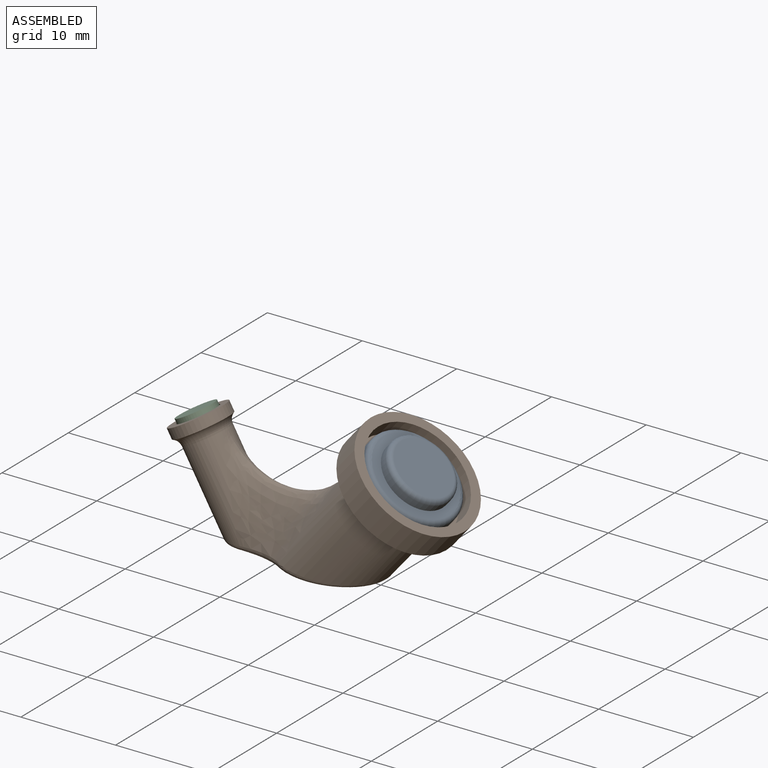
[diagram: assembled view]
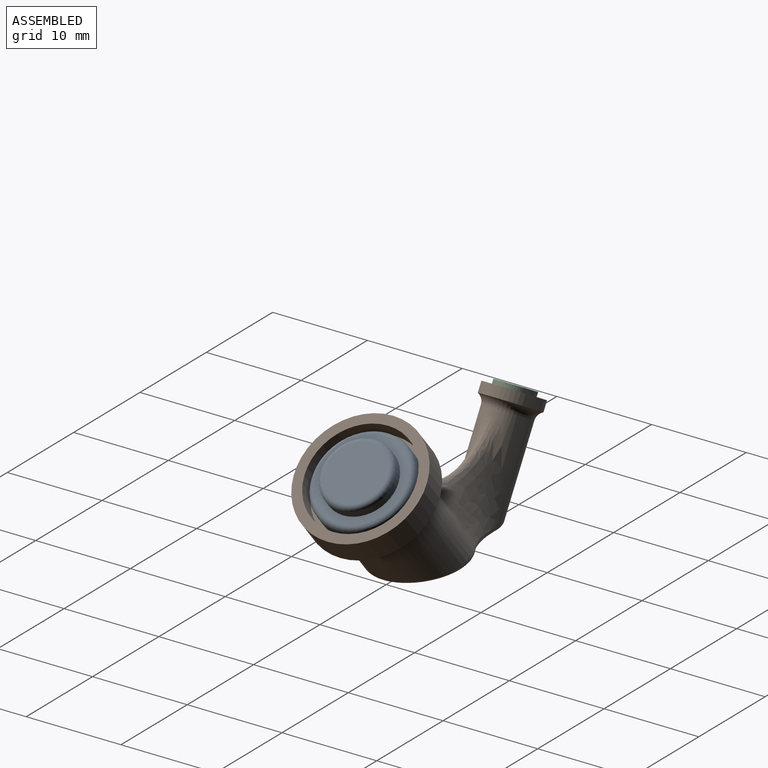
[diagram: assembled view, second angle]
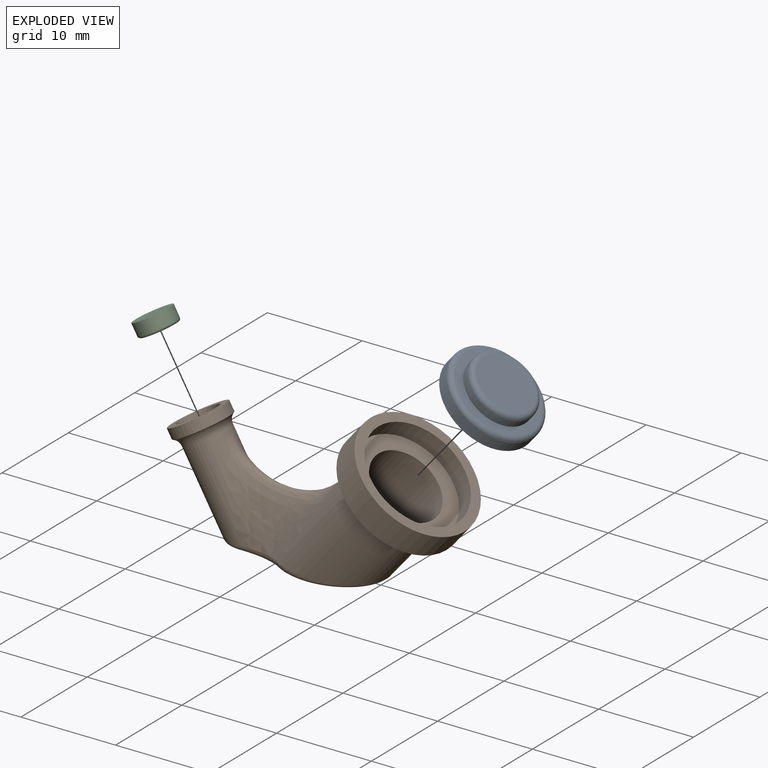
[diagram: exploded view]
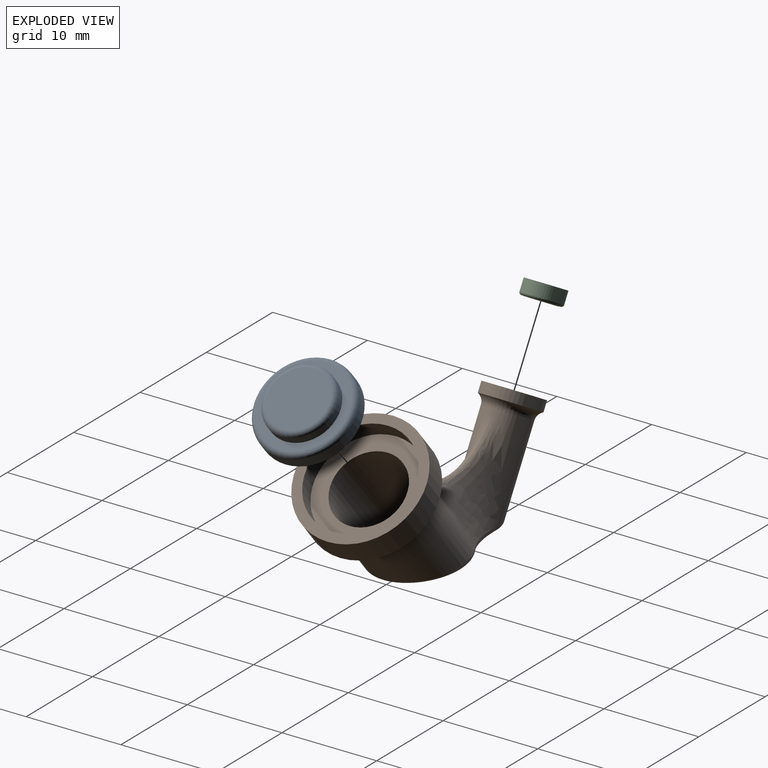
[diagram: exploded view, second angle]
ASSEMBLY  parts=3 mates=2
PART A: 7 faces, bbox 10.8x10.8x3 mm
  f0: cylinder r=4.99mm len=9.98mm, axis (0,0,-1), area 37.4mm2, adj f2,f6
  f1: plane 8.97x8.97mm, normal (0,0,1), area 22.6mm2, adj f3,f6
  f2: plane 9.98x9.98mm, normal (0,0,-1), area 78.3mm2, adj f0
  f3: cylinder r=3.59mm len=7.19mm, axis (0,0,-1), area 17.5mm2, adj f1,f5
  f4: plane 6.17x6.17mm, normal (0,0,1), area 29.9mm2, adj f5
  f5: torus R=3.09mm, axis (0,0,1), area 17.1mm2, adj f3,f4
  f6: torus R=4.48mm, axis (0,0,1), area 24.1mm2, adj f0,f1
PART B: 27 faces, bbox 31.2x13.8x20.4 mm
  f0: plane 3.91x3.38mm, normal (-0.5,0,0.87), area 4mm2, adj f5,f16
  f1: plane 8.28x7.87mm, normal (0,0,-1), area 6.9mm2, adj f8,f13,f14,f15
  f2: bspline ~12.44x9.42mm, area 54mm2, adj f3,f6,f10,f11
  f3: bspline ~12.44x9.42mm, area 54.2mm2, adj f2,f4,f6,f10
  f4: bspline ~7.16x7.07mm, area 11mm2, adj f3,f6,f10,f14
  f5: cylinder r=1.6mm len=12.06mm, axis (-0.5,0,0.87), area 112.1mm2, adj f0,f7
  f6: cylinder r=2.41mm len=10.74mm, axis (-0.5,0,0.87), area 98.7mm2, adj f2,f3,f4,f11,f12,f26
  f7: plane 7.69x6.29mm, normal (0,0,-1), area 12.1mm2, adj f5,f8,f12,f13,f14
  f8: cylinder r=3.75mm len=16.77mm, axis (0.64,0,0.77), area 293.2mm2, adj f1,f7,f9,f13,f14
  f9: plane 10.84x8.31mm, normal (0.64,0,0.77), area 48.2mm2, adj f8,f24
  f10: cylinder r=4.45mm len=14.73mm, axis (0.64,0,0.77), area 214mm2, adj f2,f3,f4,f11,f15,f25
  f11: bspline ~7.47x7.18mm, area 11.2mm2, adj f2,f6,f10,f13
  f12: bspline ~4.82x2.55mm, area 4.5mm2, adj f6,f7,f13,f14
  f13: bspline ~6.16x2.1mm, area 5.1mm2, adj f1,f7,f8,f11,f12,f15
  f14: bspline ~6.93x2.79mm, area 5.1mm2, adj f1,f4,f7,f8,f12,f15
  f15: bspline ~8.91x8.89mm, area 15.1mm2, adj f1,f10,f13,f14
  f16: cylinder r=1.95mm len=3.91mm, axis (-0.5,0,0.87), area 2mm2, adj f0,f17
  f17: plane 4.2x3.64mm, normal (-0.5,0,0.87), area 1.9mm2, adj f16,f18
  f18: cylinder r=2.1mm len=4.2mm, axis (-0.5,0,0.87), area 12.1mm2, adj f17,f19
  f19: plane 5.93x5.14mm, normal (-0.5,0,0.87), area 13.8mm2, adj f18,f20
  f20: cylinder r=2.97mm len=5.93mm, axis (-0.5,0,0.87), area 20.1mm2, adj f19,f26
  f21: plane 12.87x9.86mm, normal (-0.64,0,-0.77), area 36.5mm2, adj f22,f25
  f22: cylinder r=6.44mm len=12.87mm, axis (0.64,0,0.77), area 119.6mm2, adj f21,f23
  f23: plane 12.87x9.86mm, normal (0.64,0,0.77), area 37.8mm2, adj f22,f24
  f24: cylinder r=5.42mm len=10.84mm, axis (0.64,0,0.77), area 66.1mm2, adj f9,f23
  f25: torus R=5.46mm, axis (-0.64,0,-0.77), area 48.3mm2, adj f10,f21
  f26: torus R=3.43mm, axis (-0.5,0,0.87), area 18.3mm2, adj f6,f20
PART C: 6 faces, bbox 4.4x4.4x1.5 mm
  f0: cylinder r=2.02mm len=4.04mm, axis (0,0,-1), area 16.1mm2, adj f2,f3
  f1: plane 3.53x3.53mm, normal (0,0,1), area 1.9mm2, adj f3,f4
  f2: plane 4.04x4.04mm, normal (0,0,-1), area 12.8mm2, adj f0
  f3: torus R=1.77mm, axis (0,0,1), area 4.8mm2, adj f0,f1
  f4: cylinder r=1.59mm len=3.18mm, axis (0,0,-1), area 0.3mm2, adj f1,f5
  f5: plane 3.18x3.18mm, normal (0,0,1), area 7.9mm2, adj f4
PLACE A rot(axis=(0,1,0),40deg) t=(12.64,0,15.06)mm
PLACE B at identity
PLACE C rot(axis=(-0.97,0,-0.26),180deg) t=(-9.54,0,16.52)mm
MATE fastened A.f0 <-> B.f8  axis (-0.64,0,-0.77) through (12.64,0,15.06)mm
MATE revolute C.f4 <-> B.f5  axis (0.5,0,-0.87) through (-8.76,0,15.18)mm
